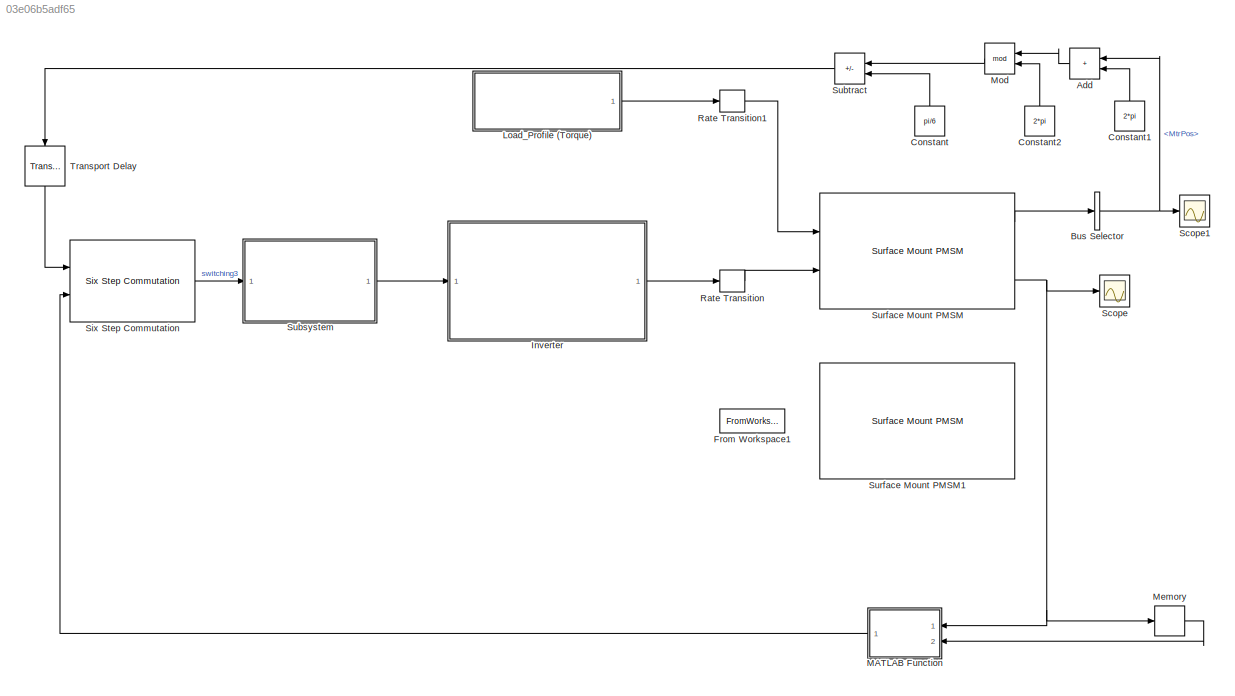
MODEL slx_03e06b5adf65
KIND model
CONFIG AbsTol = auto
CONFIG EnableMultiTasking = off
CONFIG FixedStep = auto
CONFIG MaxStep = auto
CONFIG MinStep = auto
CONFIG RelTol = 1e-3
CONFIG SampleTimeConstraint = Unconstrained
CONFIG SolverName = VariableStepAuto
CONFIG StartTime = 0.0
CONFIG StopTime = 10.0
BLOCK [Sum] Add
  IconShape = rectangular
  NameLocation = top
  Ports = [2, 1]
BLOCK [BusSelector] Bus Selector
  OutputSignals = MtrPos
  Ports = [1, 1]
BLOCK [Constant] Constant
  Value = pi/6
BLOCK [Constant] Constant1
  Value = 2*pi
BLOCK [Constant] Constant2
  Value = 2*pi
BLOCK [FromWorkspace] From Workspace1
  Commented = on
  VariableName = seq
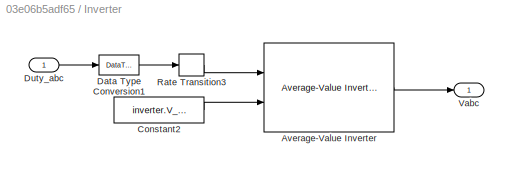
BLOCK [SubSystem] Inverter
  Ports = [1, 1]
  RequestExecContextInheritance = off
BLOCK [Reference] Inverter/Average-Value Inverter  REF=mcbplantlib/Average-Value Inverter
  Ports = [2, 1]
  SourceBlock = mcbplantlib/Average-Value Inverter
  SourceProductBaseCode = MT
  SourceType = Average Value Inverter
BLOCK [Constant] Inverter/Constant2
  OutDataTypeStr = single
  SampleTime = -1
  Value = inverter.V_dc
BLOCK [DataTypeConversion] Inverter/Data Type Conversion1
  OutDataTypeStr = single
  RndMeth = Simplest
  SaturateOnIntegerOverflow = off
BLOCK [Inport] Inverter/Duty_abc
BLOCK [RateTransition] Inverter/Rate Transition3
  Deterministic = off
  OutPortSampleTime = Ts_inverter
BLOCK [Outport] Inverter/Vabc
  VectorParamsAs1DForOutWhenUnconnected = off
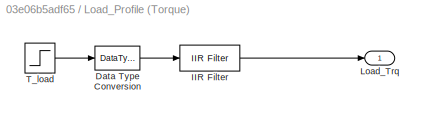
BLOCK [SubSystem] Load_Profile (Torque)
  Ports = [0, 1]
  RequestExecContextInheritance = off
BLOCK [DataTypeConversion] Load_Profile (Torque)/Data Type Conversion
  OutDataTypeStr = single
  RndMeth = Floor
  SaturateOnIntegerOverflow = off
BLOCK [Reference] Load_Profile (Torque)/IIR Filter  REF=mcbcontrolslib/IIR Filter
  Ports = [1, 1]
  SourceBlock = mcbcontrolslib/IIR Filter
  SourceProductBaseCode = MT
  SourceType = IIR Filter
BLOCK [Outport] Load_Profile (Torque)/Load_Trq
  VectorParamsAs1DForOutWhenUnconnected = off
BLOCK [Step] Load_Profile (Torque)/T_load
  After = 0.5*pmsm.T_rated
  Before = 0.05*pmsm.T_rated
  SampleTime = Ts_simulink
  Time = 5
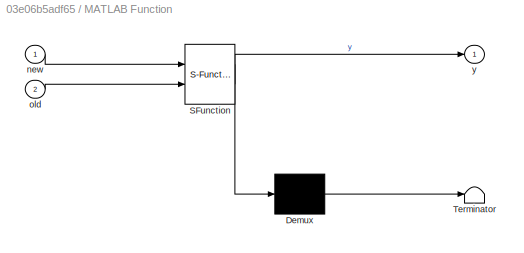
BLOCK [SubSystem] MATLAB Function
  ErrorFcn = Stateflow.Translate.translate
  NameLocation = top
  PermitHierarchicalResolution = ExplicitOnly
  Ports = [2, 1]
  RequestExecContextInheritance = off
  SFBlockType = MATLAB Function
  TreatAsAtomicUnit = on
BLOCK [Demux] MATLAB Function/ Demux 
  Outputs = 1
  Ports = [1, 1]
BLOCK [S-Function] MATLAB Function/ SFunction 
  EnableBusSupport = on
  FunctionName = sf_sfun
  PortCounts = [2 2]
  Ports = [2, 2]
  SFcnIsStateOwnerBlock = off
  SFunctionDeploymentMode = off
  Tag = Stateflow S-Function 2
BLOCK [Terminator] MATLAB Function/ Terminator 
BLOCK [Inport] MATLAB Function/new
BLOCK [Inport] MATLAB Function/old
  Port = 2
BLOCK [Outport] MATLAB Function/y
BLOCK [Memory] Memory
BLOCK [Math] Mod
  NameLocation = top
  Operator = mod
  Ports = [2, 1]
BLOCK [RateTransition] Rate Transition
  Deterministic = off
  OutPortSampleTime = Ts_motor
BLOCK [RateTransition] Rate Transition1
  Deterministic = off
  OutPortSampleTime = Ts_motor
BLOCK [Scope] Scope
  Floating = off
  NumInputPorts = 1
  Ports = [1]
  ScopeSpecificationString = Simulink.scopes.TimeScopeBlockCfg('CurrentConfiguration', extmgr.ConfigurationSet(extmgr.Configuration('Core','General UI',true),extmgr.Configuration('Core','Source UI',true),extmgr.Configuration('Sources','WiredSimulink',true),extmgr.Configuration('Visuals','Time Domain',true,'SerializedDisplays',{struct('MinYLimReal','-710.76147','MaxYLimReal','878.56783','YLabelReal','','MinYLimMag',' 0.00000',...<+1452ch>
BLOCK [Scope] Scope1
  Floating = off
  NumInputPorts = 1
  Ports = [1]
  ScopeSpecificationString = Simulink.scopes.TimeScopeBlockCfg('CurrentConfiguration', extmgr.ConfigurationSet(extmgr.Configuration('Core','General UI',true),extmgr.Configuration('Core','Source UI',true),extmgr.Configuration('Sources','WiredSimulink',true,'DataLoggingVariableName','ScopeData1'),extmgr.Configuration('Visuals','Time Domain',true,'SerializedDisplays',{struct('MinYLimReal','-0.2172','MaxYLimReal','1.95482','YLabe...<+1461ch>
BLOCK [Reference] Six Step Commutation  REF=mcbcontrolslib/Six Step Commutation
  Ports = [2, 1]
  SourceBlock = mcbcontrolslib/Six Step Commutation
  SourceProductBaseCode = MT
  SourceType = Six-Step Commutation
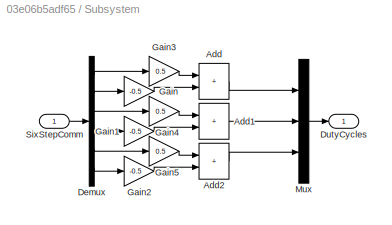
BLOCK [SubSystem] Subsystem
  Ports = [1, 1]
  RequestExecContextInheritance = off
BLOCK [Sum] Subsystem/Add
  IconShape = rectangular
  Ports = [2, 1]
BLOCK [Sum] Subsystem/Add1
  IconShape = rectangular
  Ports = [2, 1]
BLOCK [Sum] Subsystem/Add2
  IconShape = rectangular
  Ports = [2, 1]
BLOCK [Demux] Subsystem/Demux
  Outputs = 6
  Ports = [1, 6]
BLOCK [Outport] Subsystem/DutyCycles
BLOCK [Gain] Subsystem/Gain
  Gain = -0.5
BLOCK [Gain] Subsystem/Gain1
  Gain = -0.5
BLOCK [Gain] Subsystem/Gain2
  Gain = -0.5
BLOCK [Gain] Subsystem/Gain3
  Gain = 0.5
BLOCK [Gain] Subsystem/Gain4
  Gain = 0.5
BLOCK [Gain] Subsystem/Gain5
  Gain = 0.5
BLOCK [Mux] Subsystem/Mux
  DisplayOption = bar
  Inputs = 3
  Ports = [3, 1]
BLOCK [Inport] Subsystem/SixStepComm
BLOCK [Sum] Subtract
  IconShape = rectangular
  Inputs = +-
  NameLocation = top
  Ports = [2, 1]
BLOCK [Reference] Surface Mount PMSM  REF=autolibpmsmexterior/Surface Mount PMSM
  Ports = [2, 3]
  SourceBlock = autolibpmsmexterior/Surface Mount PMSM
  SourceProductBaseCode = PW,DR,MT,VE
  SourceType = Surface Mount PMSM
BLOCK [Reference] Surface Mount PMSM1  REF=autolibpmsmexterior/Surface Mount PMSM
  Commented = on
  Ports = [2, 3]
  SourceBlock = autolibpmsmexterior/Surface Mount PMSM
  SourceProductBaseCode = PW,DR,MT,VE
  SourceType = Surface Mount PMSM
BLOCK [TransportDelay] Transport Delay
  DelayTime = 0.5
  NameLocation = left
  Ports = [1, 1]
LINE Add:1 -> Mod:1
NET Bus Selector:1 -> Add:1, Scope1:1
LINE Constant1:1 -> Add:2
LINE Constant2:1 -> Mod:2
LINE Constant:1 -> Subtract:2
LINE Inverter/Average-Value Inverter:1 -> Inverter/Vabc:1
LINE Inverter/Constant2:1 -> Inverter/Average-Value Inverter:2
LINE Inverter/Data Type Conversion1:1 -> Inverter/Rate Transition3:1
LINE Inverter/Duty_abc:1 -> Inverter/Data Type Conversion1:1
LINE Inverter/Rate Transition3:1 -> Inverter/Average-Value Inverter:1
LINE Inverter:1 -> Rate Transition:1
LINE Load_Profile (Torque)/Data Type Conversion:1 -> Load_Profile (Torque)/IIR Filter:1
LINE Load_Profile (Torque)/IIR Filter:1 -> Load_Profile (Torque)/Load_Trq:1
LINE Load_Profile (Torque)/T_load:1 -> Load_Profile (Torque)/Data Type Conversion:1
LINE Load_Profile (Torque):1 -> Rate Transition1:1
LINE MATLAB Function:1 -> Six Step Commutation:2
LINE Memory:1 -> MATLAB Function:2
LINE Mod:1 -> Subtract:1
LINE Rate Transition1:1 -> Surface Mount PMSM:1
LINE Rate Transition:1 -> Surface Mount PMSM:2
LINE Six Step Commutation:1 -> Subsystem:1
LINE Subsystem/Add1:1 -> Subsystem/Mux:2
LINE Subsystem/Add2:1 -> Subsystem/Mux:3
LINE Subsystem/Add:1 -> Subsystem/Mux:1
LINE Subsystem/Demux:1 -> Subsystem/Gain3:1
LINE Subsystem/Demux:2 -> Subsystem/Gain:1
LINE Subsystem/Demux:3 -> Subsystem/Gain4:1
LINE Subsystem/Demux:4 -> Subsystem/Gain1:1
LINE Subsystem/Demux:5 -> Subsystem/Gain5:1
LINE Subsystem/Demux:6 -> Subsystem/Gain2:1
LINE Subsystem/Gain1:1 -> Subsystem/Add1:2
LINE Subsystem/Gain2:1 -> Subsystem/Add2:2
LINE Subsystem/Gain3:1 -> Subsystem/Add:1
LINE Subsystem/Gain4:1 -> Subsystem/Add1:1
LINE Subsystem/Gain5:1 -> Subsystem/Add2:1
LINE Subsystem/Gain:1 -> Subsystem/Add:2
LINE Subsystem/Mux:1 -> Subsystem/DutyCycles:1
LINE Subsystem/SixStepComm:1 -> Subsystem/Demux:1
LINE Subsystem:1 -> Inverter:1
LINE Subtract:1 -> Transport Delay:1
LINE Surface Mount PMSM:1 -> Bus Selector:1
NET Surface Mount PMSM:3 -> MATLAB Function:1, Memory:1, Scope:1
LINE Transport Delay:1 -> Six Step Commutation:1
note: NET lines group one-source signal fan-out (src -> all destinations, sorted); 1:1 wires keep LINE
CHART MATLAB Function states=1 transitions=1
  STATE_LABEL 'eML_blk_kernel()'
  STATE_LABEL 'SCRIPT:\nfunction y = fcn(new, old)\n    y = 1;\n    if new<old\n        y = -1;\n    end\nend\n'
CHART  states=0 transitions=0
